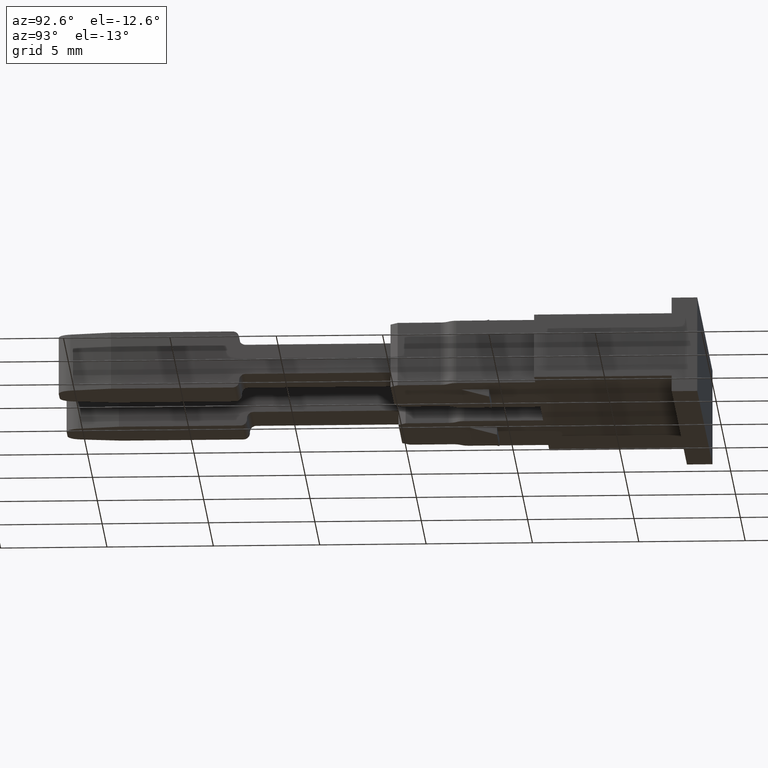
[diagram: clean part render]
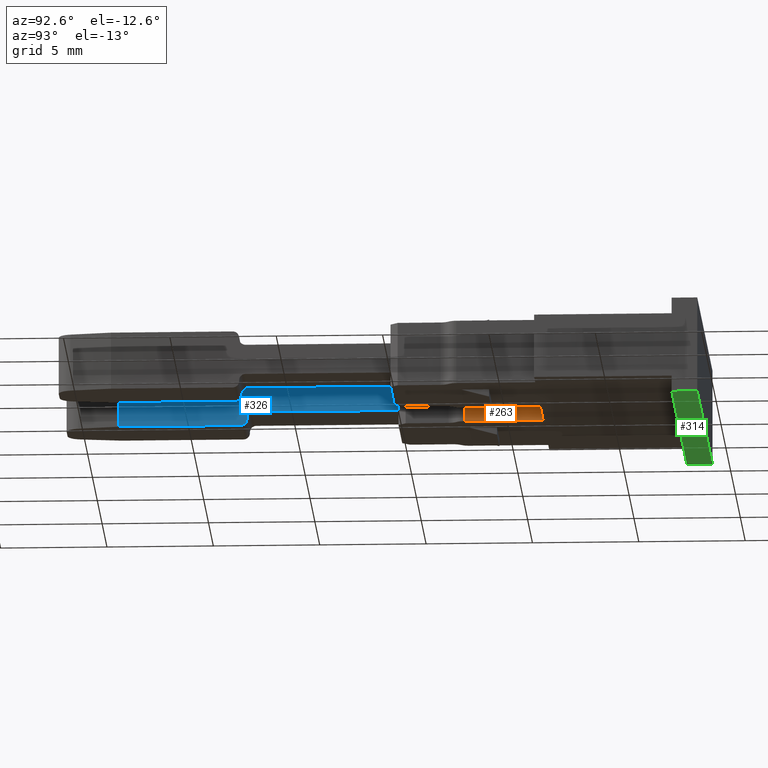
[diagram: same view with three faces highlighted in distinct colors, each labeled with its STEP entity id]
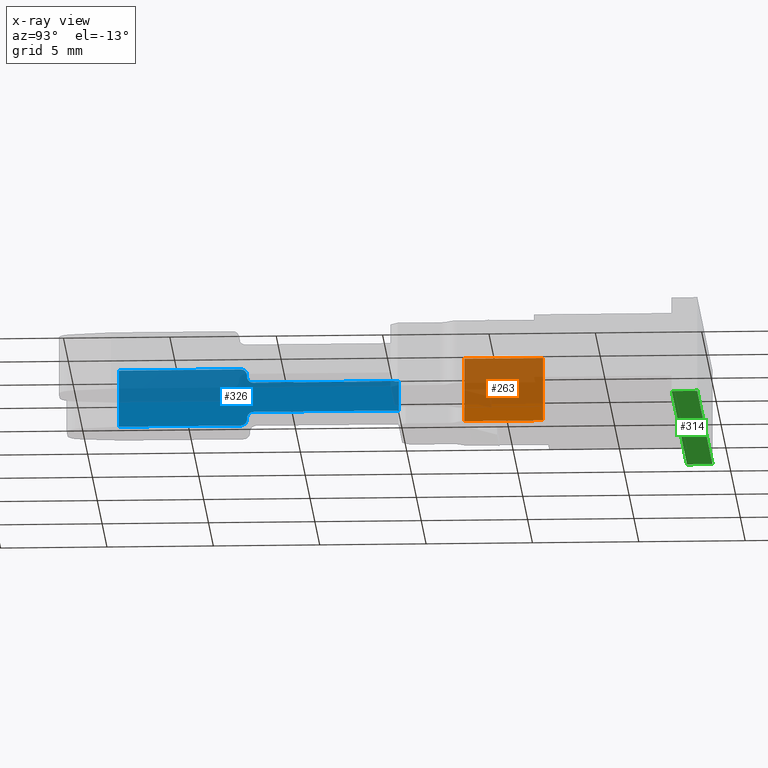
[diagram: x-ray of the same camera — body ghosted, the three highlighted faces saturated]
A machine part, auxiliary view with three faces highlighted in distinct colors.
The next image is the same camera in x-ray (body ghosted, the three faces saturated) — at least one of them is partly hidden behind the body in this view.
Their STEP definitions:

[orange] entity #263 — the highlighted planar face has unit normal (-1, 0, 0).
#210 = EDGE_CURVE ( 'NONE', #2671, #2721, #1087, .T. ) ;
#212 = EDGE_CURVE ( 'NONE', #2721, #2754, #1088, .T. ) ;
#224 = EDGE_CURVE ( 'NONE', #2666, #2754, #1112, .T. ) ;
#229 = EDGE_CURVE ( 'NONE', #2666, #2671, #1153, .T. ) ;
#263 = ADVANCED_FACE ( 'NONE', ( #1245 ), #1287, .F. ) ;
#613 = CARTESIAN_POINT ( 'NONE',  ( 1145.644466905616100, 662.7378672810804100, 0.0000000000000000000 ) ) ;
#628 = CARTESIAN_POINT ( 'NONE',  ( 1145.644466905616100, 662.7378672810804100, 3.000000000000000000 ) ) ;
#1058 = CARTESIAN_POINT ( 'NONE',  ( 1145.644466905616100, 662.7578707420599400, 3.000000000000000000 ) ) ;
#1060 = DIRECTION ( 'NONE',  ( -0.0000000000000000000, -0.0000000000000000000, -1.000000000000000000 ) ) ;
#1068 = CARTESIAN_POINT ( 'NONE',  ( 1145.644466905616100, 666.4412584401425200, 3.000000000000000000 ) ) ;
#1077 = DIRECTION ( 'NONE',  ( 0.0000000000000000000, 1.000000000000000000, -0.0000000000000000000 ) ) ;
#1087 = LINE ( 'NONE', #1058, #1705 ) ;
#1088 = LINE ( 'NONE', #1068, #1700 ) ;
#1095 = CARTESIAN_POINT ( 'NONE',  ( 1145.644466905616100, 662.7578638201010800, 0.0000000000000000000 ) ) ;
#1112 = LINE ( 'NONE', #1095, #1721 ) ;
#1129 = DIRECTION ( 'NONE',  ( -0.0000000000000000000, 1.000000000000000000, 0.0000000000000000000 ) ) ;
#1153 = LINE ( 'NONE', #1180, #1731 ) ;
#1170 = DIRECTION ( 'NONE',  ( 0.0000000000000000000, 0.0000000000000000000, 1.000000000000000000 ) ) ;
#1180 = CARTESIAN_POINT ( 'NONE',  ( 1145.644466905616100, 662.7378707420599500, 3.000000000000000000 ) ) ;
#1245 = FACE_OUTER_BOUND ( 'NONE', #2539, .T. ) ;
#1248 = DIRECTION ( 'NONE',  ( 0.0000000000000000000, 0.0000000000000000000, 1.000000000000000000 ) ) ;
#1273 = CARTESIAN_POINT ( 'NONE',  ( 1145.644466905616100, 662.7578707420599400, 3.000000000000000000 ) ) ;
#1276 = DIRECTION ( 'NONE',  ( -1.000000000000000000, 0.0000000000000000000, 0.0000000000000000000 ) ) ;
#1287 = PLANE ( 'NONE',  #1750 ) ;
#1387 = CARTESIAN_POINT ( 'NONE',  ( 1145.644466905616100, 666.4412584401425200, 3.000000000000000400 ) ) ;
#1700 = VECTOR ( 'NONE', #1060, 1000.000000000000000 ) ;
#1705 = VECTOR ( 'NONE', #1077, 1000.000000000000000 ) ;
#1721 = VECTOR ( 'NONE', #1129, 1000.000000000000000 ) ;
#1731 = VECTOR ( 'NONE', #1170, 1000.000000000000000 ) ;
#1750 = AXIS2_PLACEMENT_3D ( 'NONE', #1273, #1276, #1248 ) ;
#1846 = CARTESIAN_POINT ( 'NONE',  ( 1145.644466905616100, 666.4412584401425200, 0.0000000000000000000 ) ) ;
#2353 = ORIENTED_EDGE ( 'NONE', *, *, #210, .F. ) ;
#2402 = ORIENTED_EDGE ( 'NONE', *, *, #212, .F. ) ;
#2404 = ORIENTED_EDGE ( 'NONE', *, *, #229, .F. ) ;
#2440 = ORIENTED_EDGE ( 'NONE', *, *, #224, .T. ) ;
#2539 = EDGE_LOOP ( 'NONE', ( #2404, #2440, #2402, #2353 ) ) ;
#2666 = VERTEX_POINT ( 'NONE', #613 ) ;
#2671 = VERTEX_POINT ( 'NONE', #628 ) ;
#2721 = VERTEX_POINT ( 'NONE', #1387 ) ;
#2754 = VERTEX_POINT ( 'NONE', #1846 ) ;

[blue] entity #326 — the highlighted planar face has unit normal (-1, -0, -0).
#17 = EDGE_CURVE ( 'NONE', #2650, #2692, #2781, .T. ) ;
#39 = EDGE_CURVE ( 'NONE', #2598, #2595, #1482, .T. ) ;
#58 = EDGE_CURVE ( 'NONE', #2579, #2650, #1522, .T. ) ;
#71 = EDGE_CURVE ( 'NONE', #2598, #2687, #635, .T. ) ;
#75 = EDGE_CURVE ( 'NONE', #2669, #2673, #651, .T. ) ;
#84 = EDGE_CURVE ( 'NONE', #2668, #2579, #679, .T. ) ;
#99 = EDGE_CURVE ( 'NONE', #2687, #2669, #1580, .T. ) ;
#104 = EDGE_CURVE ( 'NONE', #2737, #2692, #1609, .T. ) ;
#107 = EDGE_CURVE ( 'NONE', #2618, #2673, #761, .T. ) ;
#110 = EDGE_CURVE ( 'NONE', #2634, #2668, #789, .T. ) ;
#112 = EDGE_CURVE ( 'NONE', #2595, #2634, #776, .T. ) ;
#121 = EDGE_CURVE ( 'NONE', #2618, #2737, #792, .T. ) ;
#326 = ADVANCED_FACE ( 'NONE', ( #488 ), #470, .F. ) ;
#470 = PLANE ( 'NONE',  #1831 ) ;
#471 = DIRECTION ( 'NONE',  ( 7.162730294145293700E-007, -0.9999999999997434300, 0.0000000000000000000 ) ) ;
#472 = CARTESIAN_POINT ( 'NONE',  ( 1144.494513078972000, 633.9904998856812900, 1.500000000000050400 ) ) ;
#488 = FACE_OUTER_BOUND ( 'NONE', #2523, .T. ) ;
#489 = DIRECTION ( 'NONE',  ( -0.9999999999997435400, -7.162730294145294800E-007, -5.364441115149939300E-014 ) ) ;
#514 = CARTESIAN_POINT ( 'NONE',  ( 1144.494500057496700, 652.1699856249198300, 2.847804784774985900 ) ) ;
#539 = CARTESIAN_POINT ( 'NONE',  ( 1144.494494728929100, 659.6092820011524500, 2.199999999999970000 ) ) ;
#547 = CARTESIAN_POINT ( 'NONE',  ( 1144.494499842614700, 652.4699856249416100, 0.4522013187406444000 ) ) ;
#555 = CARTESIAN_POINT ( 'NONE',  ( 1144.494500057496700, 652.1699856249251800, 0.1522013187407402500 ) ) ;
#563 = CARTESIAN_POINT ( 'NONE',  ( 1144.494502719368000, 646.4455650513607500, 0.1522013187407237300 ) ) ;
#573 = CARTESIAN_POINT ( 'NONE',  ( 1144.494502719368000, 646.4455650513607500, 2.847804784775002300 ) ) ;
#574 = CARTESIAN_POINT ( 'NONE',  ( 1144.494499842614500, 652.4699856249416100, 0.5000061035156794200 ) ) ;
#578 = CARTESIAN_POINT ( 'NONE',  ( 1144.494499842614700, 652.4699856249416100, 2.500000000000051100 ) ) ;
#581 = CARTESIAN_POINT ( 'NONE',  ( 1144.494499842614700, 652.4699856249416100, 2.547804784775003800 ) ) ;
#585 = CARTESIAN_POINT ( 'NONE',  ( 1144.494499627732500, 652.7699856249647600, 0.8000061035156751400 ) ) ;
#609 = CARTESIAN_POINT ( 'NONE',  ( 1144.494496906175100, 659.6092820011524500, 0.8000061035156755800 ) ) ;
#635 = LINE ( 'NONE', #661, #1533 ) ;
#637 = DIRECTION ( 'NONE',  ( -1.259368144656452000E-037, 1.000000000000000000, 2.347622273454535600E-024 ) ) ;
#651 = LINE ( 'NONE', #667, #1511 ) ;
#661 = CARTESIAN_POINT ( 'NONE',  ( 1144.494499842614500, 652.4699856249416100, -8.894767489098054400 ) ) ;
#667 = CARTESIAN_POINT ( 'NONE',  ( 1144.494499627732500, 641.3475629657206100, 0.8000061035156751400 ) ) ;
#668 = DIRECTION ( 'NONE',  ( -7.385219485357330600E-024, -6.294261101327853900E-019, 1.000000000000000000 ) ) ;
#679 = LINE ( 'NONE', #715, #1551 ) ;
#715 = CARTESIAN_POINT ( 'NONE',  ( 1144.494513078972000, 633.9904998856812900, 2.847804784775002800 ) ) ;
#717 = DIRECTION ( 'NONE',  ( -7.162730294145293700E-007, 0.9999999999997434300, -0.0000000000000000000 ) ) ;
#720 = DIRECTION ( 'NONE',  ( 7.162729668644273000E-007, -0.9999999999997435400, 0.0000000000000000000 ) ) ;
#721 = DIRECTION ( 'NONE',  ( 5.364441115148562900E-014, 3.842404488664303600E-020, -1.000000000000000000 ) ) ;
#728 = DIRECTION ( 'NONE',  ( -0.9999999999997435400, -7.162730294145294800E-007, -5.364441115149939900E-014 ) ) ;
#747 = CARTESIAN_POINT ( 'NONE',  ( 1144.494494728929300, 659.6092820011524500, 1.500000000000050400 ) ) ;
#748 = DIRECTION ( 'NONE',  ( -0.9999999999997435400, -7.162730294145294800E-007, -5.364441115149939900E-014 ) ) ;
#750 = CARTESIAN_POINT ( 'NONE',  ( 1144.494499627732900, 652.7699856249647600, 0.5000061035156752000 ) ) ;
#754 = DIRECTION ( 'NONE',  ( 7.162729668644273000E-007, -0.9999999999997435400, 0.0000000000000000000 ) ) ;
#757 = CARTESIAN_POINT ( 'NONE',  ( 1144.494499627732700, 652.7699856249647600, 2.500000000000050600 ) ) ;
#761 = LINE ( 'NONE', #747, #1569 ) ;
#775 = CARTESIAN_POINT ( 'NONE',  ( 1144.494513078972000, 633.9904998856812900, 0.1522013187407241500 ) ) ;
#776 = LINE ( 'NONE', #775, #1610 ) ;
#785 = CARTESIAN_POINT ( 'NONE',  ( 1144.494494728928900, 641.3475629657206100, 2.200000000000050400 ) ) ;
#789 = LINE ( 'NONE', #808, #1615 ) ;
#792 = LINE ( 'NONE', #785, #1617 ) ;
#800 = DIRECTION ( 'NONE',  ( 7.162730294145293700E-007, -0.9999999999997434300, 0.0000000000000000000 ) ) ;
#807 = DIRECTION ( 'NONE',  ( 1.259368144656452000E-037, -1.000000000000000000, -2.347622273454535600E-024 ) ) ;
#808 = CARTESIAN_POINT ( 'NONE',  ( 1144.494504157744600, 646.4455650513617700, 1.500000000000050400 ) ) ;
#811 = DIRECTION ( 'NONE',  ( -5.364441115148562900E-014, -3.842404488664303600E-020, 1.000000000000000000 ) ) ;
#1463 = VECTOR ( 'NONE', #2836, 1000.000000000000000 ) ;
#1466 = AXIS2_PLACEMENT_3D ( 'NONE', #1925, #1928, #1943 ) ;
#1482 = CIRCLE ( 'NONE', #1466, 0.2999999999999328800 ) ;
#1511 = VECTOR ( 'NONE', #637, 1000.000000000000000 ) ;
#1522 = CIRCLE ( 'NONE', #1544, 0.2999999999999328800 ) ;
#1533 = VECTOR ( 'NONE', #668, 1000.000000000000000 ) ;
#1544 = AXIS2_PLACEMENT_3D ( 'NONE', #1999, #1994, #1995 ) ;
#1551 = VECTOR ( 'NONE', #717, 1000.000000000000100 ) ;
#1569 = VECTOR ( 'NONE', #721, 1000.000000000000000 ) ;
#1580 = CIRCLE ( 'NONE', #1581, 0.3000000000000439000 ) ;
#1581 = AXIS2_PLACEMENT_3D ( 'NONE', #750, #728, #754 ) ;
#1608 = AXIS2_PLACEMENT_3D ( 'NONE', #757, #748, #720 ) ;
#1609 = CIRCLE ( 'NONE', #1608, 0.3000000000000439000 ) ;
#1610 = VECTOR ( 'NONE', #800, 1000.000000000000100 ) ;
#1615 = VECTOR ( 'NONE', #811, 1000.000000000000000 ) ;
#1617 = VECTOR ( 'NONE', #807, 1000.000000000000000 ) ;
#1831 = AXIS2_PLACEMENT_3D ( 'NONE', #472, #489, #471 ) ;
#1873 = CARTESIAN_POINT ( 'NONE',  ( 1144.494494728928900, 652.7699856250221700, 2.200000000000050400 ) ) ;
#1925 = CARTESIAN_POINT ( 'NONE',  ( 1144.494500057496700, 652.1699856249185800, 0.4522013187407238300 ) ) ;
#1928 = DIRECTION ( 'NONE',  ( -0.9999999999997435400, -7.162730294145294800E-007, -5.364441115149939900E-014 ) ) ;
#1943 = DIRECTION ( 'NONE',  ( 7.162729668646924300E-007, -0.9999999999997435400, 0.0000000000000000000 ) ) ;
#1994 = DIRECTION ( 'NONE',  ( -0.9999999999997435400, -7.162730294145294800E-007, -5.364441115149939900E-014 ) ) ;
#1995 = DIRECTION ( 'NONE',  ( 7.162729668646924300E-007, -0.9999999999997435400, 0.0000000000000000000 ) ) ;
#1999 = CARTESIAN_POINT ( 'NONE',  ( 1144.494500057496500, 652.1699856249184700, 2.547804784775002100 ) ) ;
#2097 = ORIENTED_EDGE ( 'NONE', *, *, #110, .F. ) ;
#2100 = ORIENTED_EDGE ( 'NONE', *, *, #121, .T. ) ;
#2124 = ORIENTED_EDGE ( 'NONE', *, *, #84, .F. ) ;
#2130 = ORIENTED_EDGE ( 'NONE', *, *, #107, .F. ) ;
#2160 = ORIENTED_EDGE ( 'NONE', *, *, #99, .T. ) ;
#2165 = ORIENTED_EDGE ( 'NONE', *, *, #75, .T. ) ;
#2173 = ORIENTED_EDGE ( 'NONE', *, *, #58, .F. ) ;
#2176 = ORIENTED_EDGE ( 'NONE', *, *, #71, .T. ) ;
#2180 = ORIENTED_EDGE ( 'NONE', *, *, #17, .F. ) ;
#2186 = ORIENTED_EDGE ( 'NONE', *, *, #104, .T. ) ;
#2195 = ORIENTED_EDGE ( 'NONE', *, *, #112, .F. ) ;
#2198 = ORIENTED_EDGE ( 'NONE', *, *, #39, .F. ) ;
#2523 = EDGE_LOOP ( 'NONE', ( #2173, #2124, #2097, #2195, #2198, #2176, #2160, #2165, #2130, #2100, #2186, #2180 ) ) ;
#2579 = VERTEX_POINT ( 'NONE', #514 ) ;
#2595 = VERTEX_POINT ( 'NONE', #555 ) ;
#2598 = VERTEX_POINT ( 'NONE', #547 ) ;
#2618 = VERTEX_POINT ( 'NONE', #539 ) ;
#2634 = VERTEX_POINT ( 'NONE', #563 ) ;
#2650 = VERTEX_POINT ( 'NONE', #581 ) ;
#2668 = VERTEX_POINT ( 'NONE', #573 ) ;
#2669 = VERTEX_POINT ( 'NONE', #585 ) ;
#2673 = VERTEX_POINT ( 'NONE', #609 ) ;
#2687 = VERTEX_POINT ( 'NONE', #574 ) ;
#2692 = VERTEX_POINT ( 'NONE', #578 ) ;
#2737 = VERTEX_POINT ( 'NONE', #1873 ) ;
#2760 = CARTESIAN_POINT ( 'NONE',  ( 1144.494499842614700, 652.4699856249416100, 1.500000000000050400 ) ) ;
#2781 = LINE ( 'NONE', #2760, #1463 ) ;
#2836 = DIRECTION ( 'NONE',  ( 5.364441115148562900E-014, 3.842404488664303600E-020, -1.000000000000000000 ) ) ;

[green] entity #314 — the highlighted planar face has unit normal (0, 0, 1).
#141 = EDGE_CURVE ( 'NONE', #2639, #2638, #856, .T. ) ;
#146 = EDGE_CURVE ( 'NONE', #2638, #2732, #884, .T. ) ;
#161 = EDGE_CURVE ( 'NONE', #2639, #2636, #935, .T. ) ;
#164 = EDGE_CURVE ( 'NONE', #2636, #2732, #932, .T. ) ;
#314 = ADVANCED_FACE ( 'NONE', ( #422 ), #430, .F. ) ;
#408 = DIRECTION ( 'NONE',  ( 0.0000000000000000000, 0.0000000000000000000, 1.000000000000000000 ) ) ;
#412 = DIRECTION ( 'NONE',  ( 1.000000000000000000, 0.0000000000000000000, -0.0000000000000000000 ) ) ;
#422 = FACE_OUTER_BOUND ( 'NONE', #2508, .T. ) ;
#430 = PLANE ( 'NONE',  #1762 ) ;
#446 = CARTESIAN_POINT ( 'NONE',  ( 1139.194470802330000, 672.9078760720548200, -0.7499999999999997800 ) ) ;
#508 = CARTESIAN_POINT ( 'NONE',  ( 1139.194470802330000, 672.9078760720548200, -0.7499999999999997800 ) ) ;
#510 = CARTESIAN_POINT ( 'NONE',  ( 1139.194470802330000, 674.1078760720547500, -0.7499999999999997800 ) ) ;
#550 = CARTESIAN_POINT ( 'NONE',  ( 1154.994472239529600, 674.1078760720547500, -0.7499999999999997800 ) ) ;
#815 = CARTESIAN_POINT ( 'NONE',  ( 1139.194470802330000, 672.9078760720548200, -0.7499999999999997800 ) ) ;
#856 = LINE ( 'NONE', #815, #1655 ) ;
#884 = LINE ( 'NONE', #887, #1665 ) ;
#886 = DIRECTION ( 'NONE',  ( 1.000000000000000000, 0.0000000000000000000, 0.0000000000000000000 ) ) ;
#887 = CARTESIAN_POINT ( 'NONE',  ( 1139.194470802330000, 672.9078760720548200, -0.7499999999999997800 ) ) ;
#894 = DIRECTION ( 'NONE',  ( 0.0000000000000000000, -1.000000000000000000, -0.0000000000000000000 ) ) ;
#907 = DIRECTION ( 'NONE',  ( 1.000000000000000000, 0.0000000000000000000, 0.0000000000000000000 ) ) ;
#927 = CARTESIAN_POINT ( 'NONE',  ( 1154.994472239529600, 674.1078760720547500, -0.7499999999999997800 ) ) ;
#932 = LINE ( 'NONE', #927, #1666 ) ;
#935 = LINE ( 'NONE', #937, #1672 ) ;
#937 = CARTESIAN_POINT ( 'NONE',  ( 1139.194470802330000, 674.1078760720547500, -0.7499999999999997800 ) ) ;
#939 = DIRECTION ( 'NONE',  ( -0.0000000000000000000, -1.000000000000000000, 0.0000000000000000000 ) ) ;
#1655 = VECTOR ( 'NONE', #894, 1000.000000000000000 ) ;
#1665 = VECTOR ( 'NONE', #886, 1000.000000000000000 ) ;
#1666 = VECTOR ( 'NONE', #939, 1000.000000000000000 ) ;
#1672 = VECTOR ( 'NONE', #907, 1000.000000000000000 ) ;
#1762 = AXIS2_PLACEMENT_3D ( 'NONE', #446, #408, #412 ) ;
#1842 = CARTESIAN_POINT ( 'NONE',  ( 1154.994472239529600, 672.9078760720548200, -0.7499999999999997800 ) ) ;
#2203 = ORIENTED_EDGE ( 'NONE', *, *, #161, .T. ) ;
#2225 = ORIENTED_EDGE ( 'NONE', *, *, #146, .F. ) ;
#2249 = ORIENTED_EDGE ( 'NONE', *, *, #164, .T. ) ;
#2266 = ORIENTED_EDGE ( 'NONE', *, *, #141, .F. ) ;
#2508 = EDGE_LOOP ( 'NONE', ( #2203, #2249, #2225, #2266 ) ) ;
#2636 = VERTEX_POINT ( 'NONE', #550 ) ;
#2638 = VERTEX_POINT ( 'NONE', #508 ) ;
#2639 = VERTEX_POINT ( 'NONE', #510 ) ;
#2732 = VERTEX_POINT ( 'NONE', #1842 ) ;